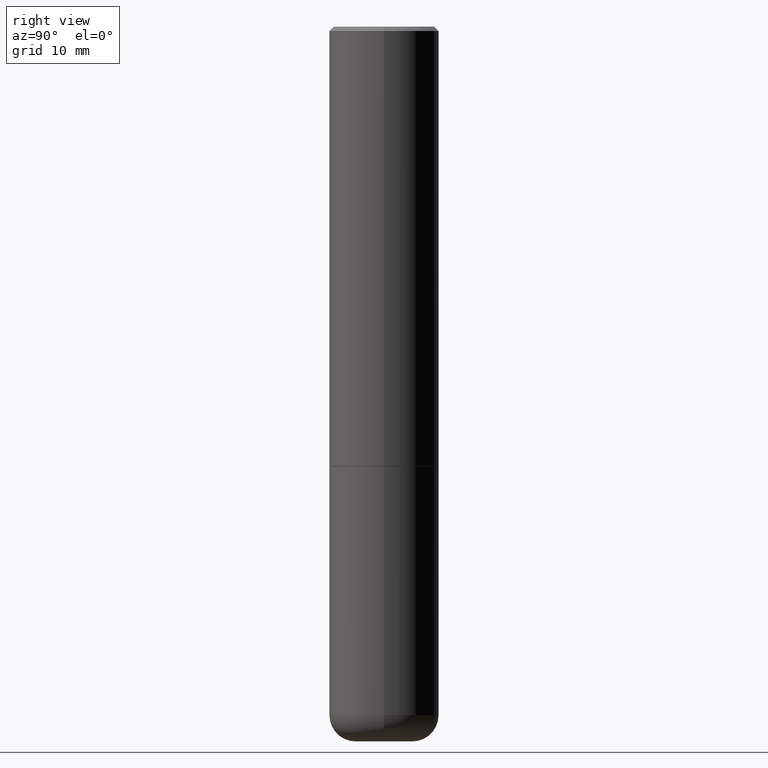
[diagram: clean part render]
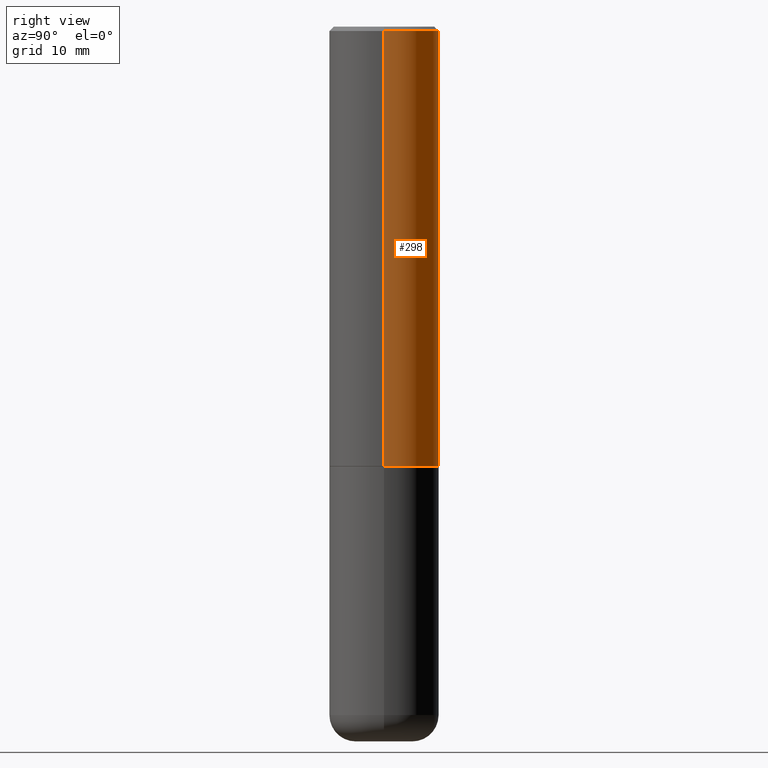
[diagram: same view with one face highlighted and labeled with its STEP entity id]
A machine part, right view. The second image highlights one B-rep face of the part: STEP entity #298.
In plain terms, the highlighted cylindrical surface (partial cylindrical patch) has radius 6.35 mm, axis along (-0, 0, 1).
Its self-contained STEP definition (entity closure, byte-faithful):
#33 = CIRCLE ( 'NONE', #219, 0.2499999999999996669 ) ;
#40 = ORIENTED_EDGE ( 'NONE', *, *, #154, .F. ) ;
#43 = CARTESIAN_POINT ( 'NONE',  ( -0.2499999999999996114, -1.748293572161906447E-15, -1.998999999999999888 ) ) ;
#55 = DIRECTION ( 'NONE',  ( 1.000000000000000000, -6.982962677686266711E-15, 0.000000000000000000 ) ) ;
#85 = VERTEX_POINT ( 'NONE', #196 ) ;
#107 = CARTESIAN_POINT ( 'NONE',  ( 4.890937612370302936E-31, -6.982962677686332285E-17, -0.02000000000000011838 ) ) ;
#112 = ORIENTED_EDGE ( 'NONE', *, *, #339, .T. ) ;
#132 = DIRECTION ( 'NONE',  ( 1.000000000000000000, -6.982962677686266711E-15, 4.876176775795935232E-29 ) ) ;
#154 = EDGE_CURVE ( 'NONE', #220, #416, #335, .T. ) ;
#155 = DIRECTION ( 'NONE',  ( -2.445468806185136877E-29, 3.491481338843145188E-15, 1.000000000000000000 ) ) ;
#156 = AXIS2_PLACEMENT_3D ( 'NONE', #405, #409, #132 ) ;
#162 = FACE_OUTER_BOUND ( 'NONE', #340, .T. ) ;
#178 = DIRECTION ( 'NONE',  ( 1.000000000000000000, -6.982962677686264344E-15, 0.000000000000000000 ) ) ;
#184 = EDGE_CURVE ( 'NONE', #456, #416, #273, .T. ) ;
#196 = CARTESIAN_POINT ( 'NONE',  ( 0.2499999999999996669, -8.725211865769010891E-15, -1.998999999999999888 ) ) ;
#210 = CARTESIAN_POINT ( 'NONE',  ( 4.888492143564087591E-29, -6.979471196347447369E-15, -1.998999999999999888 ) ) ;
#219 = AXIS2_PLACEMENT_3D ( 'NONE', #210, #441, #178 ) ;
#220 = VERTEX_POINT ( 'NONE', #423 ) ;
#233 = DIRECTION ( 'NONE',  ( -2.445468806185136877E-29, 3.491481338843145188E-15, 1.000000000000000000 ) ) ;
#270 = CARTESIAN_POINT ( 'NONE',  ( 0.2499999999999995282, -1.745740669421563325E-15, 1.219044193948981566E-29 ) ) ;
#273 = LINE ( 'NONE', #319, #419 ) ;
#290 = CARTESIAN_POINT ( 'NONE',  ( -0.2499999999999994171, 1.675911042644699238E-15, -0.02000000000000011838 ) ) ;
#298 = ADVANCED_FACE ( 'NONE', ( #162 ), #322, .T. ) ;
#308 = LINE ( 'NONE', #270, #420 ) ;
#316 = ORIENTED_EDGE ( 'NONE', *, *, #447, .F. ) ;
#319 = CARTESIAN_POINT ( 'NONE',  ( -0.2499999999999995282, 1.776356839400247112E-15, -1.229733772563724063E-29 ) ) ;
#322 = CYLINDRICAL_SURFACE ( 'NONE', #156, 0.2499999999999995282 ) ;
#331 = AXIS2_PLACEMENT_3D ( 'NONE', #107, #393, #55 ) ;
#335 = CIRCLE ( 'NONE', #331, 0.2499999999999994171 ) ;
#339 = EDGE_CURVE ( 'NONE', #85, #456, #33, .T. ) ;
#340 = EDGE_LOOP ( 'NONE', ( #112, #398, #40, #316 ) ) ;
#393 = DIRECTION ( 'NONE',  ( -2.445468806185136597E-29, 3.491481338843145583E-15, 1.000000000000000000 ) ) ;
#398 = ORIENTED_EDGE ( 'NONE', *, *, #184, .T. ) ;
#405 = CARTESIAN_POINT ( 'NONE',  ( 0.000000000000000000, 0.000000000000000000, 0.000000000000000000 ) ) ;
#409 = DIRECTION ( 'NONE',  ( -2.445468806185136597E-29, 3.491481338843145583E-15, 1.000000000000000000 ) ) ;
#416 = VERTEX_POINT ( 'NONE', #290 ) ;
#419 = VECTOR ( 'NONE', #155, 39.37007874015748143 ) ;
#420 = VECTOR ( 'NONE', #233, 39.37007874015748143 ) ;
#423 = CARTESIAN_POINT ( 'NONE',  ( 0.2499999999999994171, -1.784954126219742244E-15, -0.02000000000000011838 ) ) ;
#441 = DIRECTION ( 'NONE',  ( -2.445468806185136597E-29, 3.491481338843145583E-15, 1.000000000000000000 ) ) ;
#447 = EDGE_CURVE ( 'NONE', #85, #220, #308, .T. ) ;
#456 = VERTEX_POINT ( 'NONE', #43 ) ;